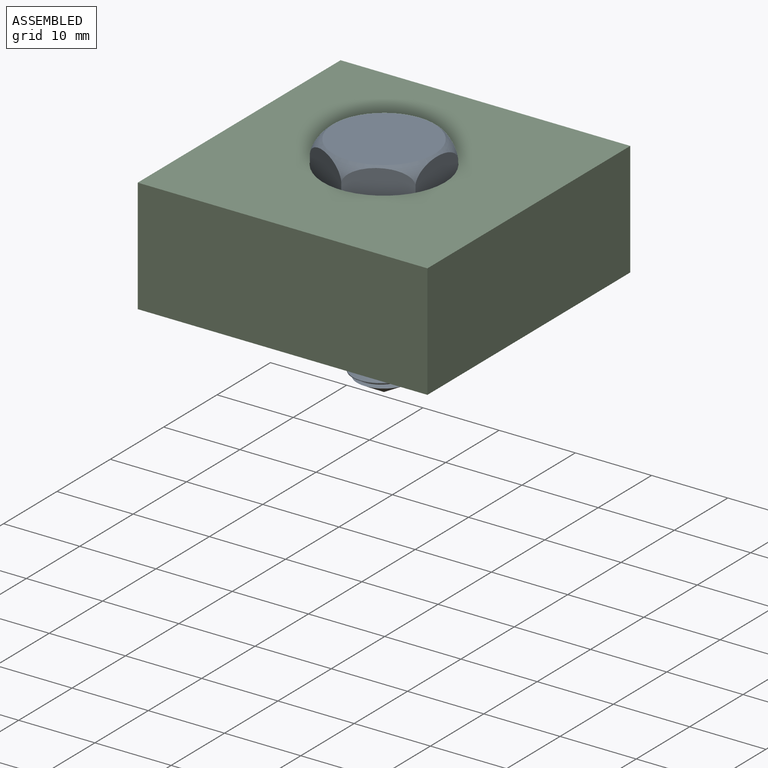
[diagram: assembled view]
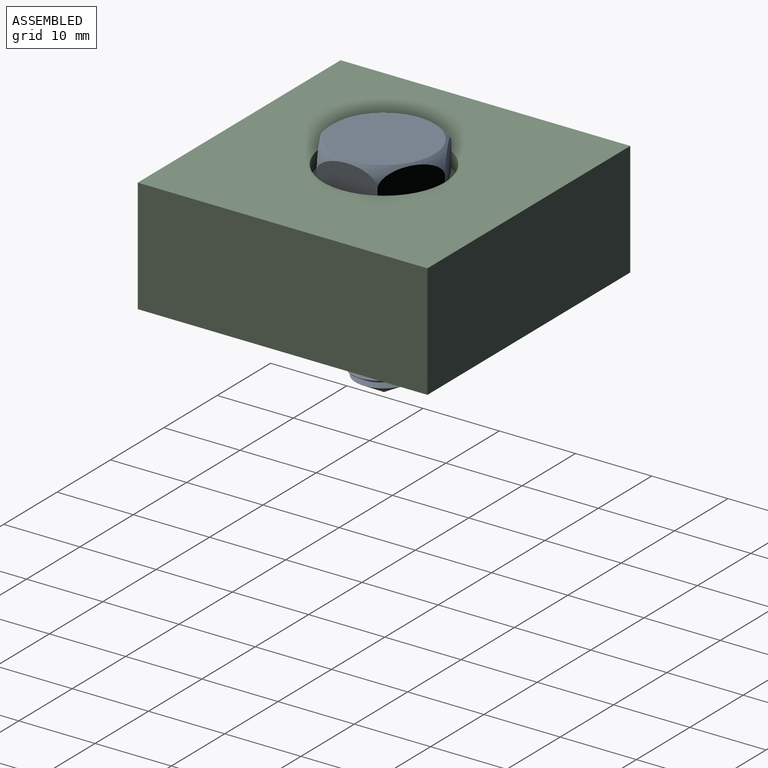
[diagram: assembled view, second angle]
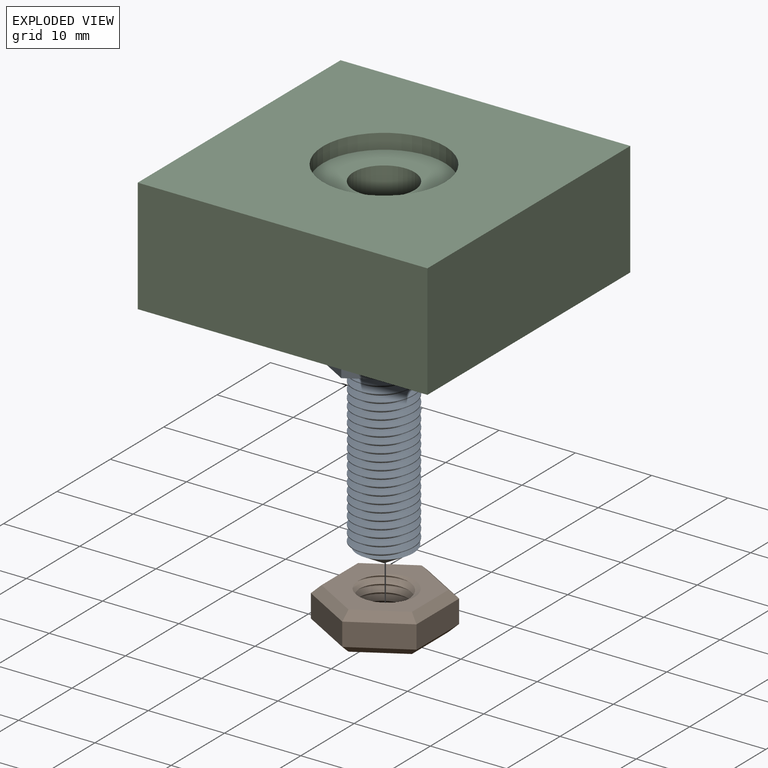
[diagram: exploded view]
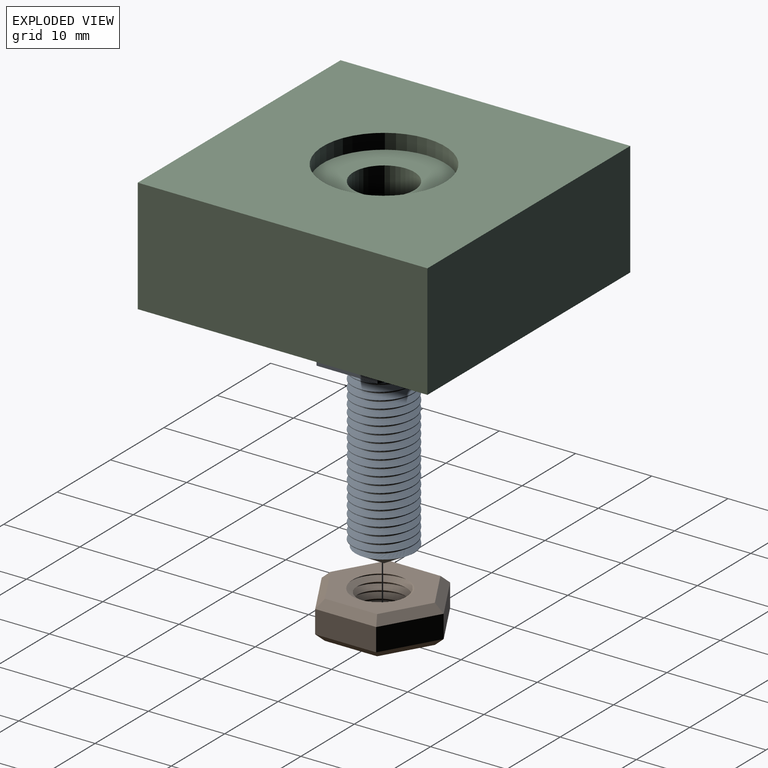
[diagram: exploded view, second angle]
ASSEMBLY  parts=3 mates=2
PART A: 13 faces, bbox 16.5x16.6x30.6 mm
  f0: plane 8x4.77mm, normal (1,0,0), area 34.7mm2, adj f1,f5,f6,f11
  f1: plane 6.93x4.77mm, normal (0.5,-0.87,0), area 34.7mm2, adj f0,f2,f6,f11
  f2: plane 6.93x4.77mm, normal (-0.5,-0.87,0), area 34.7mm2, adj f1,f3,f6,f11
  f3: plane 8x4.77mm, normal (-1,0,0), area 34.7mm2, adj f2,f4,f6,f11
  f4: plane 6.93x4.77mm, normal (-0.5,0.87,0), area 34.7mm2, adj f3,f5,f6,f11
  f5: plane 6.93x4.77mm, normal (0.5,0.87,0), area 34.7mm2, adj f0,f4,f6,f11
  f6: plane 16.59x14.45mm, normal (0,0,-1), area 124.3mm2, adj f0,f1,f2,f3,f4,f5,f7,f8
  f7: bspline ~23.78x9.24mm, area 466.1mm2, adj f6,f8,f9,f10
  f8: bspline ~24.28x9.24mm, area 468.9mm2, adj f6,f7,f9,f10
  f9: cylinder r=4mm len=22.69mm, axis (0,0,-1), area 133.9mm2, adj f6,f7,f8,f10
  f10: cone r=0mm half-angle=60deg, axis (0,0,1), area 48.5mm2, adj f7,f8,f9
  f11: revolved ~15.86x15.86mm, area 167.5mm2, adj f0,f1,f2,f3,f4,f5,f12
  f12: plane 13.28x13.28mm, normal (0,0,1), area 138.5mm2, adj f11
PART B: 23 faces, bbox 14.5x16.6x6.8 mm
  f0: plane 6.93x4mm, normal (0.5,0.87,0), area 24mm2, adj f1,f5,f15,f22
  f1: plane 6.93x4mm, normal (-0.5,0.87,0), area 24mm2, adj f0,f2,f16,f20
  f2: plane 8x3mm, normal (-1,0,0), area 24mm2, adj f1,f3,f14,f18
  f3: plane 6.93x4mm, normal (-0.5,-0.87,0), area 24mm2, adj f2,f4,f12,f17
  f4: plane 6.93x4mm, normal (0.5,-0.87,0), area 24mm2, adj f3,f5,f11,f19
  f5: plane 8x3mm, normal (1,0,0), area 24mm2, adj f0,f4,f13,f21
  f6: plane 14.29x12.45mm, normal (0,0,1), area 79.7mm2, adj f8,f9,f10,f17,f18,f19,f20,f21
  f7: plane 14.29x12.45mm, normal (0,0,-1), area 79.7mm2, adj f8,f9,f10,f11,f12,f13,f14,f15
  f8: bspline ~9.24x8mm, area 102.1mm2, adj f6,f7,f9,f10
  f9: bspline ~9.24x8mm, area 102.2mm2, adj f6,f7,f8,f10
  f10: cylinder r=4mm len=8mm, axis (0,0,-1), area 11.7mm2, adj f6,f7,f8,f9
  f11: plane 6.93x4.58mm, normal (0.35,-0.61,-0.71), area 10.5mm2, adj f4,f7,f12,f13
  f12: plane 6.93x4.58mm, normal (-0.35,-0.61,-0.71), area 10.5mm2, adj f3,f7,f11,f14
  f13: plane 8x1mm, normal (0.71,0,-0.71), area 10.5mm2, adj f5,f7,f11,f15
  f14: plane 8x1mm, normal (-0.71,0,-0.71), area 10.5mm2, adj f2,f7,f12,f16
  f15: plane 6.93x4.58mm, normal (0.35,0.61,-0.71), area 10.5mm2, adj f0,f7,f13,f16
  f16: plane 6.93x4.58mm, normal (-0.35,0.61,-0.71), area 10.5mm2, adj f1,f7,f14,f15
  f17: plane 6.93x4.58mm, normal (-0.35,-0.61,0.71), area 10.5mm2, adj f3,f6,f18,f19
  f18: plane 8x1mm, normal (-0.71,0,0.71), area 10.5mm2, adj f2,f6,f17,f20
  f19: plane 6.93x4.58mm, normal (0.35,-0.61,0.71), area 10.5mm2, adj f4,f6,f17,f21
  f20: plane 6.93x4.58mm, normal (-0.35,0.61,0.71), area 10.5mm2, adj f1,f6,f18,f22
  f21: plane 8x1mm, normal (0.71,0,0.71), area 10.5mm2, adj f5,f6,f19,f22
  f22: plane 6.93x4.58mm, normal (0.35,0.61,0.71), area 10.5mm2, adj f0,f6,f20,f21
PART C: 9 faces, bbox 38x38x15 mm
  f0: plane 38x15mm, normal (0,1,0), area 570mm2, adj f1,f3,f4,f5
  f1: plane 38x15mm, normal (-1,0,0), area 570mm2, adj f0,f2,f4,f5
  f2: plane 38x15mm, normal (0,-1,0), area 570mm2, adj f1,f3,f4,f5
  f3: plane 38x15mm, normal (1,0,0), area 570mm2, adj f0,f2,f4,f5
  f4: plane 38x38mm, normal (0,0,1), area 1242.9mm2, adj f0,f1,f2,f3,f8
  f5: plane 38x38mm, normal (0,0,-1), area 1393.7mm2, adj f0,f1,f2,f3,f6
  f6: cylinder r=4mm len=13mm, axis (0,0,1), area 326.7mm2, adj f5,f7
  f7: plane 16x16mm, normal (0,0,1), area 150.8mm2, adj f6,f8
  f8: cylinder r=8mm len=16mm, axis (0,0,1), area 100.5mm2, adj f4,f7
PLACE A t=(-0.01,-0.11,-19.66)mm
PLACE B t=(0.16,-20.17,-22.66)mm
PLACE C t=(-0.01,29.89,-12.66)mm fixed
MATE fastened B.f6 <-> C.f6  axis (0,0,1) through (-0.01,-0.11,-7.66)mm
MATE cylindrical A.f10 <-> C.f6  axis (0,0,1) through (-0.01,-0.11,10.34)mm
